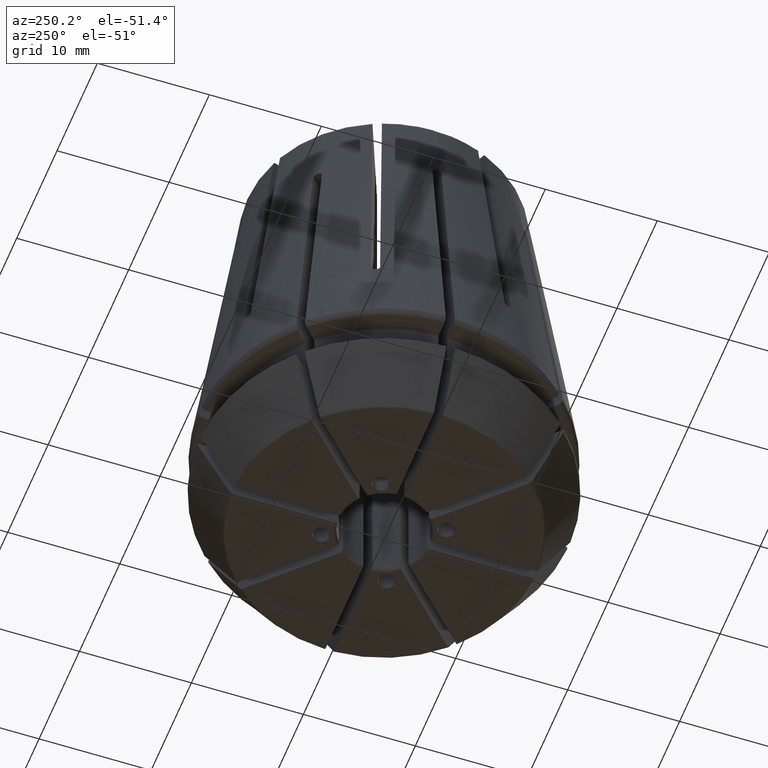
[diagram: clean part render]
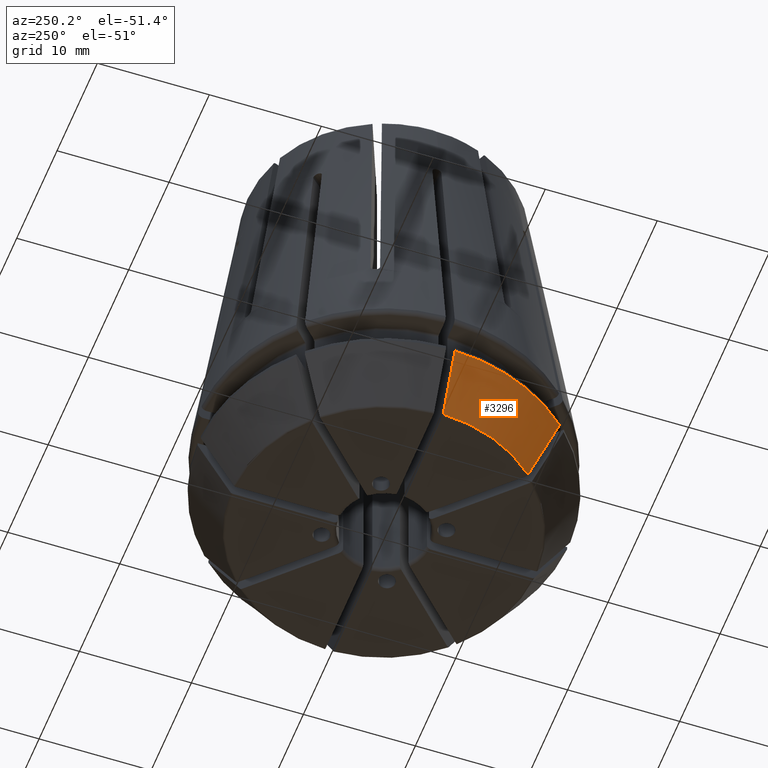
[diagram: same view with one face highlighted and labeled with its STEP entity id]
A machine part, auxiliary view. The second image highlights one B-rep face of the part: STEP entity #3296.
In plain terms, the highlighted conical surface has half-angle 30 deg.
Its self-contained STEP definition (entity closure, byte-faithful):
#407=CONICAL_SURFACE('',#3606,16.3598076211353,0.523598775598299);
#586=B_SPLINE_CURVE_WITH_KNOTS('',3,(#5955,#5956,#5957,#5958),
 .UNSPECIFIED.,.F.,.F.,(4,4),(2.30957082118632E-7,0.0058572697629209),
 .UNSPECIFIED.);
#587=B_SPLINE_CURVE_WITH_KNOTS('',3,(#5963,#5964,#5965,#5966),
 .UNSPECIFIED.,.F.,.F.,(4,4),(0.0149055961886066,0.0207626349922613),
 .UNSPECIFIED.);
#1125=ORIENTED_EDGE('',*,*,#2085,.F.);
#1126=ORIENTED_EDGE('',*,*,#2086,.F.);
#1127=ORIENTED_EDGE('',*,*,#2087,.T.);
#1128=ORIENTED_EDGE('',*,*,#2088,.T.);
#2085=EDGE_CURVE('',#2513,#2514,#586,.T.);
#2086=EDGE_CURVE('',#2515,#2513,#2697,.T.);
#2087=EDGE_CURVE('',#2515,#2516,#587,.T.);
#2088=EDGE_CURVE('',#2516,#2514,#2698,.F.);
#2513=VERTEX_POINT('',#5959);
#2514=VERTEX_POINT('',#5960);
#2515=VERTEX_POINT('',#5962);
#2516=VERTEX_POINT('',#5967);
#2697=CIRCLE('',#3607,16.5);
#2698=CIRCLE('',#3608,13.5717423031058);
#2857=EDGE_LOOP('',(#1125,#1126,#1127,#1128));
#3045=FACE_BOUND('',#2857,.T.);
#3296=ADVANCED_FACE('',(#3045),#407,.T.);
#3606=AXIS2_PLACEMENT_3D('',#5954,#4287,#4288);
#3607=AXIS2_PLACEMENT_3D('',#5961,#4289,#4290);
#3608=AXIS2_PLACEMENT_3D('',#5968,#4291,#4292);
#4287=DIRECTION('',(0.,0.,1.));
#4288=DIRECTION('',(1.,0.,0.));
#4289=DIRECTION('',(0.,0.,1.));
#4290=DIRECTION('',(1.,0.,0.));
#4291=DIRECTION('',(0.,0.,-1.));
#4292=DIRECTION('',(-1.,0.,0.));
#5954=CARTESIAN_POINT('',(0.,0.,-4.14592921435213));
#5955=CARTESIAN_POINT('',(-11.9466757016767,-11.3809902767275,-3.90310889132457));
#5956=CARTESIAN_POINT('',(-11.2562648851119,-10.6905794601627,-5.59376609022241));
#5957=CARTESIAN_POINT('',(-10.5658283125926,-10.0001428876434,-7.28440225195461));
#5958=CARTESIAN_POINT('',(-9.875344709918,-9.30965928496877,-8.97499999999999));
#5959=CARTESIAN_POINT('',(-11.9466757016767,-11.3809902767275,-3.90310889132457));
#5960=CARTESIAN_POINT('',(-9.875344709918,-9.30965928496877,-8.97499999999999));
#5961=CARTESIAN_POINT('',(0.,0.,-3.90310889132457));
#5962=CARTESIAN_POINT('',(-16.4951508025844,-0.4,-3.90310889132457));
#5963=CARTESIAN_POINT('',(-16.4951508025844,-0.4,-3.90310889132457));
#5964=CARTESIAN_POINT('',(-15.5187624625759,-0.4,-5.59376608955292));
#5965=CARTESIAN_POINT('',(-14.5423376921789,-0.4,-7.28440226094902));
#5966=CARTESIAN_POINT('',(-13.5658464218754,-0.4,-8.975));
#5967=CARTESIAN_POINT('',(-13.5658464218754,-0.4,-8.97499999999999));
#5968=CARTESIAN_POINT('',(0.,0.,-8.975));